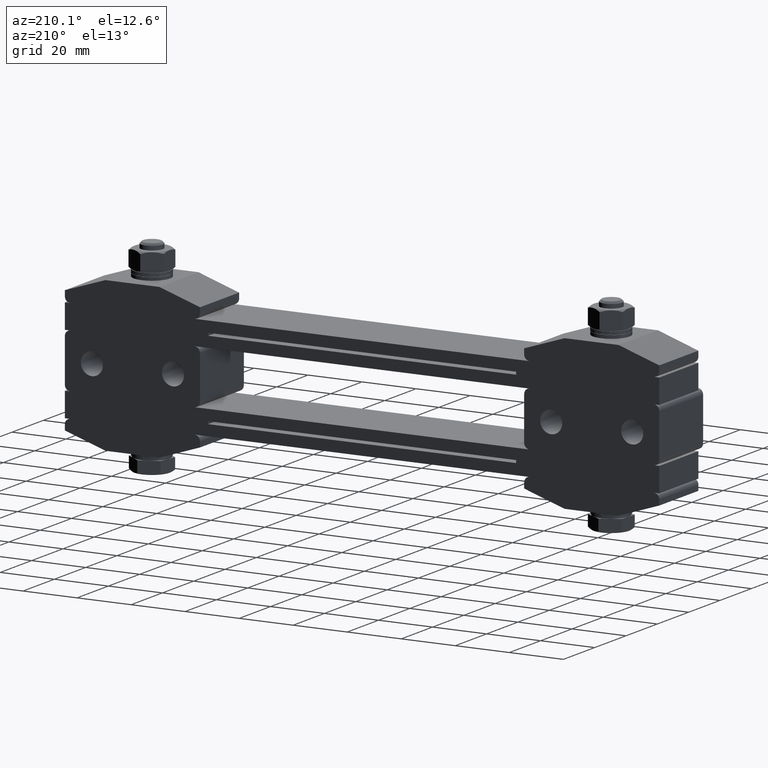
[diagram: clean part render]
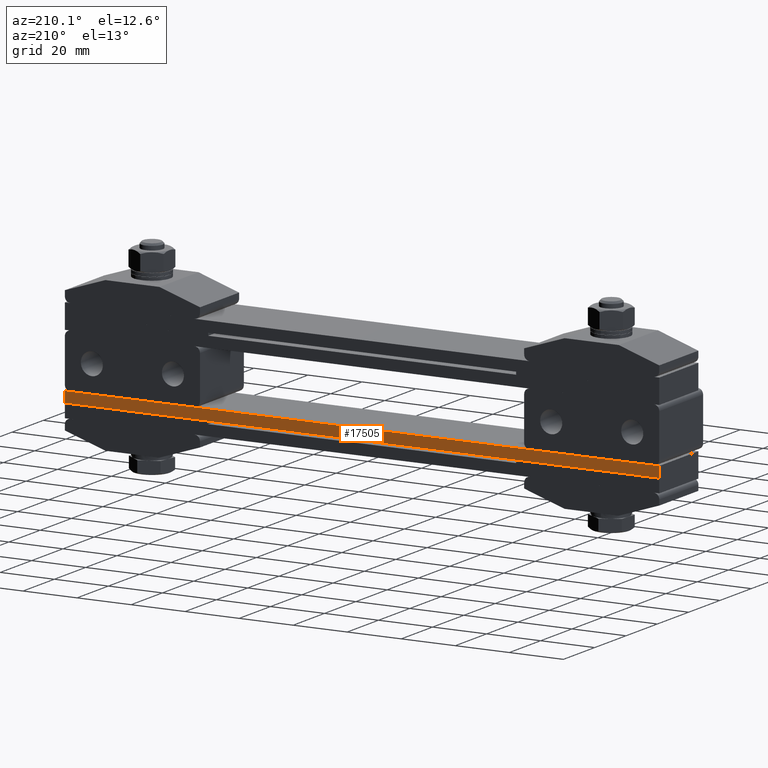
[diagram: same view with one face highlighted and labeled with its STEP entity id]
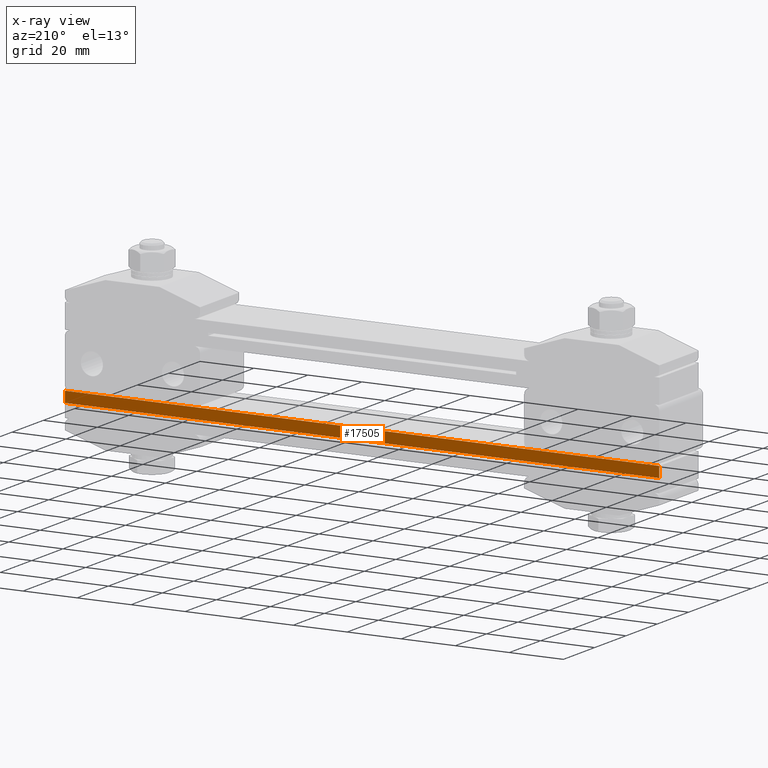
[diagram: x-ray of the same camera — body ghosted, the highlighted face saturated]
A machine part, auxiliary view. The second image highlights one B-rep face of the part: STEP entity #17505.
The next image is the same camera in x-ray: the body ghosted, the highlighted face saturated — about 0% of this face is hidden behind the body in this view.
In plain terms, the highlighted planar face has unit normal (-0, -1, 0).
Its self-contained STEP definition (entity closure, byte-faithful):
#94 = LINE ( 'NONE', #2435, #11146 ) ;
#1428 = VERTEX_POINT ( 'NONE', #15801 ) ;
#1731 = CARTESIAN_POINT ( 'NONE',  ( 110.0000000000000000, 12.50000000000000000, 0.0000000000000000000 ) ) ;
#2435 = CARTESIAN_POINT ( 'NONE',  ( -110.0000000000000000, 12.50000000000000000, 0.0000000000000000000 ) ) ;
#2837 = DIRECTION ( 'NONE',  ( 0.0000000000000000000, 0.0000000000000000000, -1.000000000000000000 ) ) ;
#2979 = VERTEX_POINT ( 'NONE', #13422 ) ;
#3280 = FACE_OUTER_BOUND ( 'NONE', #13365, .T. ) ;
#4019 = EDGE_CURVE ( 'NONE', #1428, #2979, #20363, .T. ) ;
#4331 = AXIS2_PLACEMENT_3D ( 'NONE', #6761, #13911, #19319 ) ;
#4433 = VECTOR ( 'NONE', #22541, 1000.000000000000000 ) ;
#6720 = EDGE_CURVE ( 'NONE', #2979, #20778, #15464, .T. ) ;
#6761 = CARTESIAN_POINT ( 'NONE',  ( -110.0000000000000000, 12.50000000000000000, 4.000000000000000000 ) ) ;
#7038 = CARTESIAN_POINT ( 'NONE',  ( -110.0000000000000000, 12.50000000000000000, 0.0000000000000000000 ) ) ;
#7998 = DIRECTION ( 'NONE',  ( -1.000000000000000000, 5.519574696289839900E-017, 0.0000000000000000000 ) ) ;
#8920 = ORIENTED_EDGE ( 'NONE', *, *, #6720, .F. ) ;
#9237 = VERTEX_POINT ( 'NONE', #1731 ) ;
#9331 = VECTOR ( 'NONE', #19506, 1000.000000000000000 ) ;
#9528 = VECTOR ( 'NONE', #2837, 1000.000000000000000 ) ;
#10227 = ORIENTED_EDGE ( 'NONE', *, *, #15556, .T. ) ;
#11146 = VECTOR ( 'NONE', #7998, 1000.000000000000000 ) ;
#12038 = PLANE ( 'NONE',  #4331 ) ;
#13365 = EDGE_LOOP ( 'NONE', ( #10227, #8920, #18303, #16193 ) ) ;
#13422 = CARTESIAN_POINT ( 'NONE',  ( -110.0000000000000000, 12.50000000000000000, 4.000000000000000000 ) ) ;
#13911 = DIRECTION ( 'NONE',  ( -5.519574696289839900E-017, -1.000000000000000000, 0.0000000000000000000 ) ) ;
#15464 = LINE ( 'NONE', #19096, #4433 ) ;
#15556 = EDGE_CURVE ( 'NONE', #9237, #20778, #94, .T. ) ;
#15801 = CARTESIAN_POINT ( 'NONE',  ( 110.0000000000000000, 12.50000000000000000, 4.000000000000000000 ) ) ;
#15944 = CARTESIAN_POINT ( 'NONE',  ( -110.0000000000000000, 12.50000000000000000, 4.000000000000000000 ) ) ;
#16101 = LINE ( 'NONE', #18664, #9528 ) ;
#16193 = ORIENTED_EDGE ( 'NONE', *, *, #21078, .T. ) ;
#17505 = ADVANCED_FACE ( 'NONE', ( #3280 ), #12038, .F. ) ;
#18303 = ORIENTED_EDGE ( 'NONE', *, *, #4019, .F. ) ;
#18664 = CARTESIAN_POINT ( 'NONE',  ( 110.0000000000000000, 12.50000000000000000, 4.000000000000000000 ) ) ;
#19096 = CARTESIAN_POINT ( 'NONE',  ( -110.0000000000000000, 12.50000000000000000, 4.000000000000000000 ) ) ;
#19319 = DIRECTION ( 'NONE',  ( 1.000000000000000000, -5.519574696289839900E-017, 0.0000000000000000000 ) ) ;
#19506 = DIRECTION ( 'NONE',  ( -1.000000000000000000, 5.519574696289839900E-017, 0.0000000000000000000 ) ) ;
#20363 = LINE ( 'NONE', #15944, #9331 ) ;
#20778 = VERTEX_POINT ( 'NONE', #7038 ) ;
#21078 = EDGE_CURVE ( 'NONE', #1428, #9237, #16101, .T. ) ;
#22541 = DIRECTION ( 'NONE',  ( 0.0000000000000000000, 0.0000000000000000000, -1.000000000000000000 ) ) ;